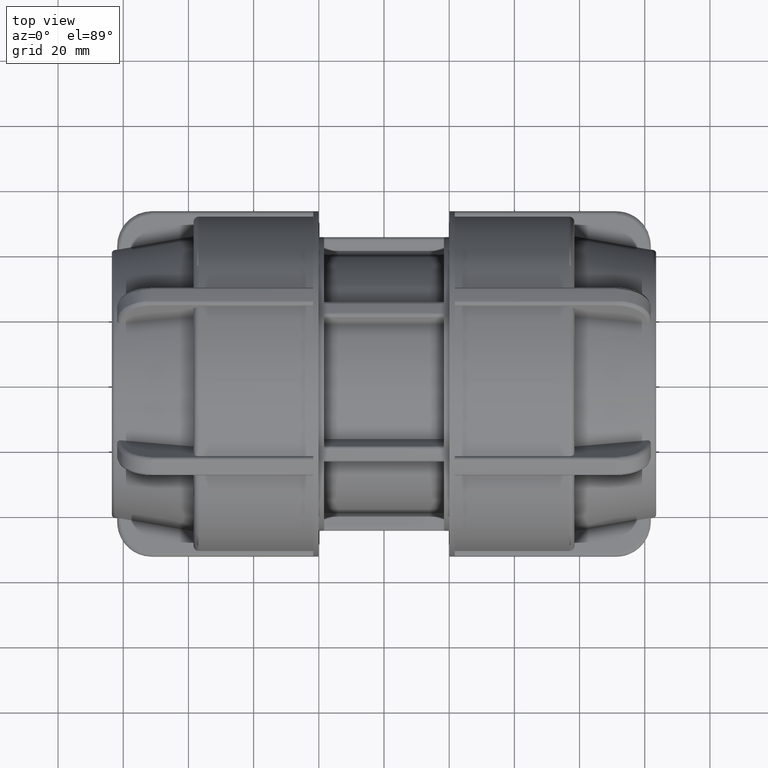
[diagram: clean part render]
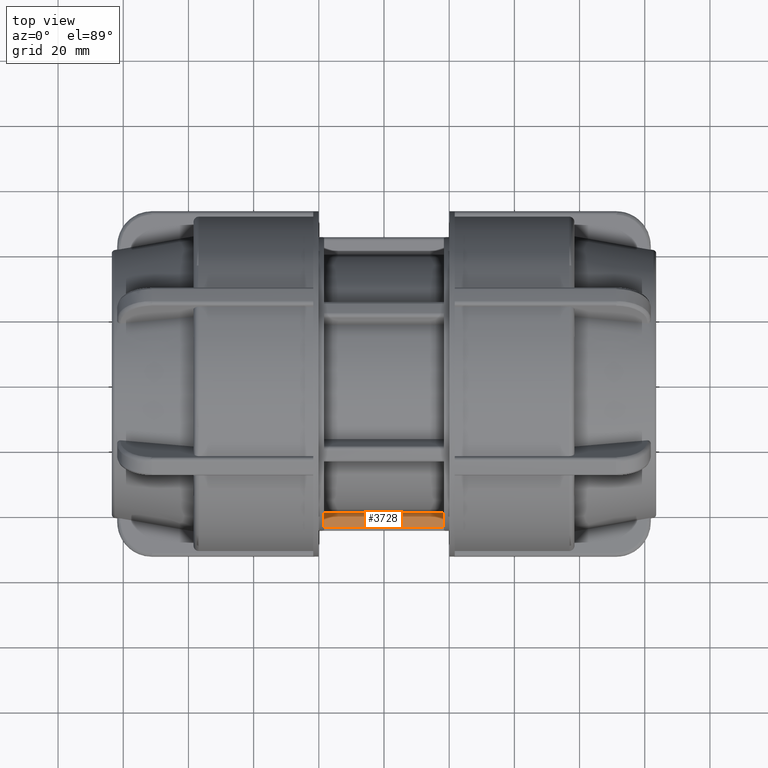
[diagram: same view with one face highlighted and labeled with its STEP entity id]
A machine part, top view. The second image highlights one B-rep face of the part: STEP entity #3728.
In plain terms, the highlighted planar face has unit normal (0, 0, 1).
Its self-contained STEP definition (entity closure, byte-faithful):
#233=PLANE('',#4009);
#342=FACE_OUTER_BOUND('',#579,.T.);
#579=EDGE_LOOP('',(#2631,#2632,#2633,#2634));
#844=LINE('',#5665,#1072);
#847=LINE('',#5688,#1075);
#848=LINE('',#5692,#1076);
#849=LINE('',#5693,#1077);
#1072=VECTOR('',#4554,4.29968736925102);
#1075=VECTOR('',#4591,36.74);
#1076=VECTOR('',#4596,36.74);
#1077=VECTOR('',#4597,4.299687369251);
#1549=VERTEX_POINT('',#5662);
#1550=VERTEX_POINT('',#5664);
#1553=VERTEX_POINT('',#5687);
#1554=VERTEX_POINT('',#5691);
#1953=EDGE_CURVE('',#1549,#1550,#844,.T.);
#1963=EDGE_CURVE('',#1550,#1553,#847,.T.);
#1965=EDGE_CURVE('',#1554,#1549,#848,.T.);
#1966=EDGE_CURVE('',#1553,#1554,#849,.T.);
#2631=ORIENTED_EDGE('',*,*,#1963,.F.);
#2632=ORIENTED_EDGE('',*,*,#1953,.F.);
#2633=ORIENTED_EDGE('',*,*,#1965,.F.);
#2634=ORIENTED_EDGE('',*,*,#1966,.F.);
#3728=ADVANCED_FACE('',(#342),#233,.T.);
#4009=AXIS2_PLACEMENT_3D('',#5690,#4594,#4595);
#4554=DIRECTION('',(3.06161699786838E-16,-1.,0.));
#4591=DIRECTION('',(-1.,-3.06161699786838E-16,0.));
#4594=DIRECTION('center_axis',(0.,0.,1.));
#4595=DIRECTION('ref_axis',(-3.5527136788005E-16,1.,0.));
#4596=DIRECTION('',(1.,3.06161699786838E-16,0.));
#4597=DIRECTION('',(-3.06161699786838E-16,1.,0.));
#5662=CARTESIAN_POINT('',(18.37,-39.6615682998038,2.65));
#5664=CARTESIAN_POINT('',(18.37,-43.9612556690548,2.65));
#5665=CARTESIAN_POINT('',(18.37,0.0390043582678024,2.65));
#5687=CARTESIAN_POINT('',(-18.37,-43.9612556690548,2.65));
#5688=CARTESIAN_POINT('',(-19.205,-43.9612556690548,2.65));
#5690=CARTESIAN_POINT('Origin',(18.37,-44.9719912834644,2.65));
#5691=CARTESIAN_POINT('',(-18.37,-39.6615682998038,2.65));
#5692=CARTESIAN_POINT('',(9.18500000000002,-39.6615682998038,2.65));
#5693=CARTESIAN_POINT('',(-18.37,0.0390043582677923,2.65));